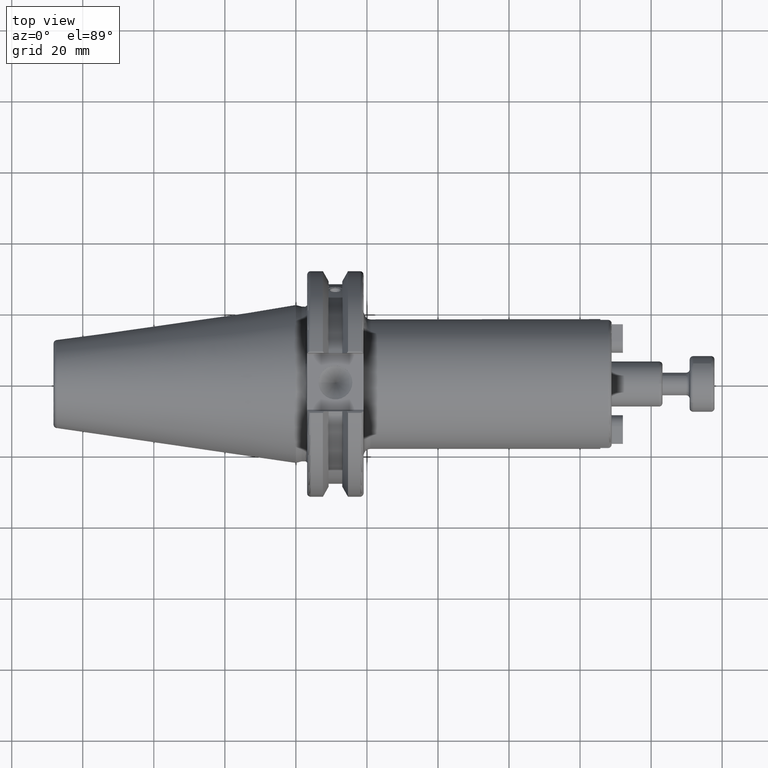
[diagram: clean part render]
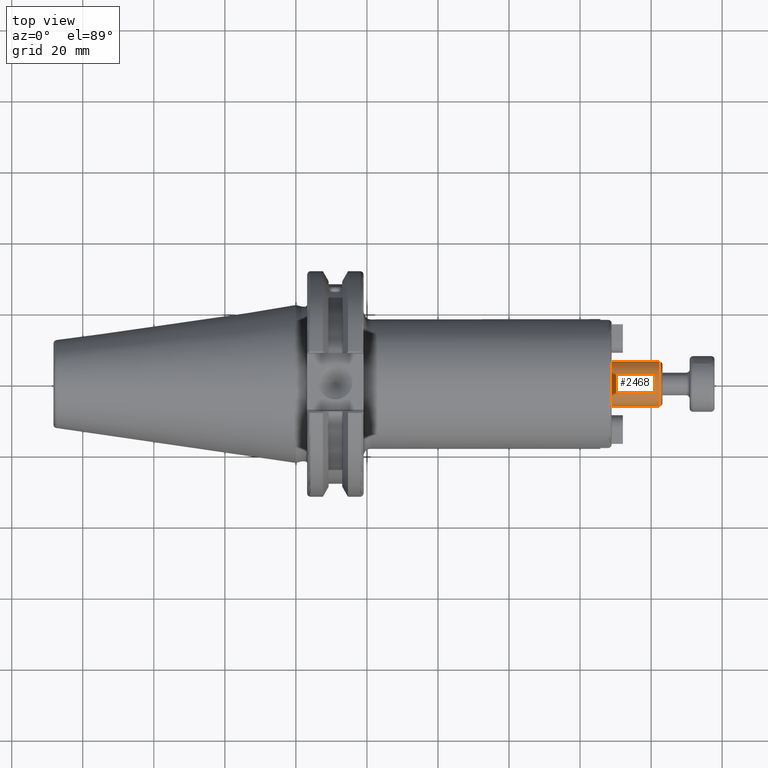
[diagram: same view with one face highlighted and labeled with its STEP entity id]
A machine part, top view. The second image highlights one B-rep face of the part: STEP entity #2468.
In plain terms, the highlighted cylindrical surface (bore or boss wall) has radius 6.35 mm, axis along (1, 0, 0).
Its self-contained STEP definition (entity closure, byte-faithful):
#116=CYLINDRICAL_SURFACE('',#2745,6.35);
#217=CIRCLE('',#2741,6.35);
#218=CIRCLE('',#2742,6.35);
#220=CIRCLE('',#2746,6.35);
#340=FACE_OUTER_BOUND('',#492,.T.);
#492=EDGE_LOOP('',(#1730,#1731,#1732,#1733,#1734));
#663=LINE('',#4004,#833);
#833=VECTOR('',#3123,6.35);
#1052=VERTEX_POINT('',#3994);
#1053=VERTEX_POINT('',#3996);
#1055=VERTEX_POINT('',#4003);
#1315=EDGE_CURVE('',#1052,#1053,#217,.T.);
#1316=EDGE_CURVE('',#1053,#1052,#218,.T.);
#1318=EDGE_CURVE('',#1053,#1055,#663,.T.);
#1319=EDGE_CURVE('',#1055,#1055,#220,.T.);
#1730=ORIENTED_EDGE('',*,*,#1316,.F.);
#1731=ORIENTED_EDGE('',*,*,#1318,.T.);
#1732=ORIENTED_EDGE('',*,*,#1319,.T.);
#1733=ORIENTED_EDGE('',*,*,#1318,.F.);
#1734=ORIENTED_EDGE('',*,*,#1315,.F.);
#2468=ADVANCED_FACE('',(#340),#116,.T.);
#2741=AXIS2_PLACEMENT_3D('',#3997,#3113,#3114);
#2742=AXIS2_PLACEMENT_3D('',#3998,#3115,#3116);
#2745=AXIS2_PLACEMENT_3D('',#4002,#3121,#3122);
#2746=AXIS2_PLACEMENT_3D('',#4005,#3124,#3125);
#3113=DIRECTION('center_axis',(1.,0.,0.));
#3114=DIRECTION('ref_axis',(0.,-1.,1.83697019872103E-16));
#3115=DIRECTION('center_axis',(1.,0.,0.));
#3116=DIRECTION('ref_axis',(0.,-1.,1.83697019872103E-16));
#3121=DIRECTION('center_axis',(1.,0.,0.));
#3122=DIRECTION('ref_axis',(0.,1.,0.));
#3123=DIRECTION('',(-1.,0.,0.));
#3124=DIRECTION('center_axis',(1.,0.,0.));
#3125=DIRECTION('ref_axis',(0.,0.,-1.));
#3994=CARTESIAN_POINT('',(102.2,-7.77650717458569E-16,6.35));
#3996=CARTESIAN_POINT('',(102.2,-6.35,-7.77650717458569E-16));
#3997=CARTESIAN_POINT('Origin',(102.2,0.,0.));
#3998=CARTESIAN_POINT('Origin',(102.2,0.,0.));
#4002=CARTESIAN_POINT('Origin',(96.05,0.,0.));
#4003=CARTESIAN_POINT('',(88.9,-6.35,-7.77650717458569E-16));
#4004=CARTESIAN_POINT('',(96.05,-6.35,-7.77650717458569E-16));
#4005=CARTESIAN_POINT('Origin',(88.9,0.,0.));